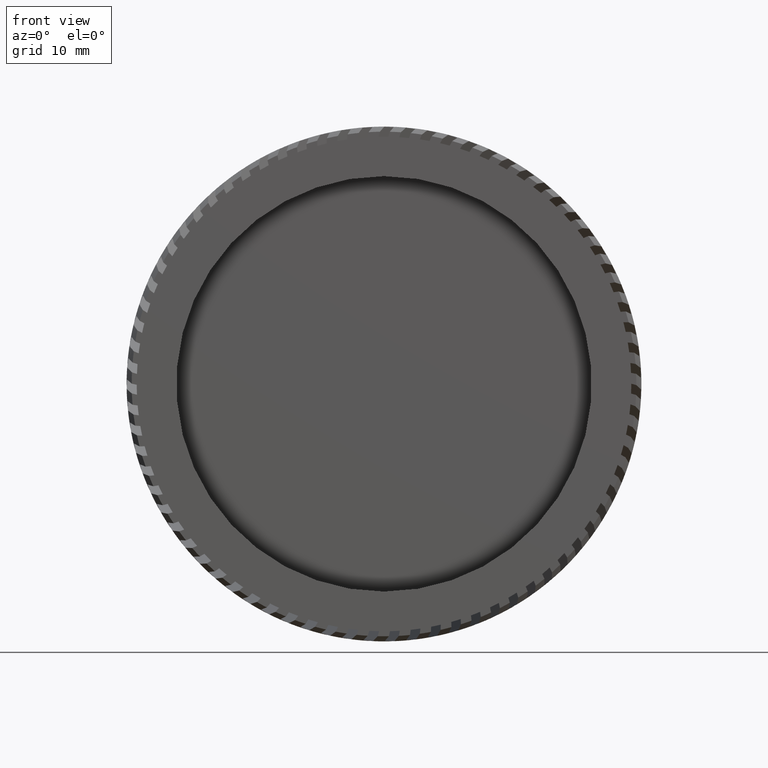
[diagram: clean part render]
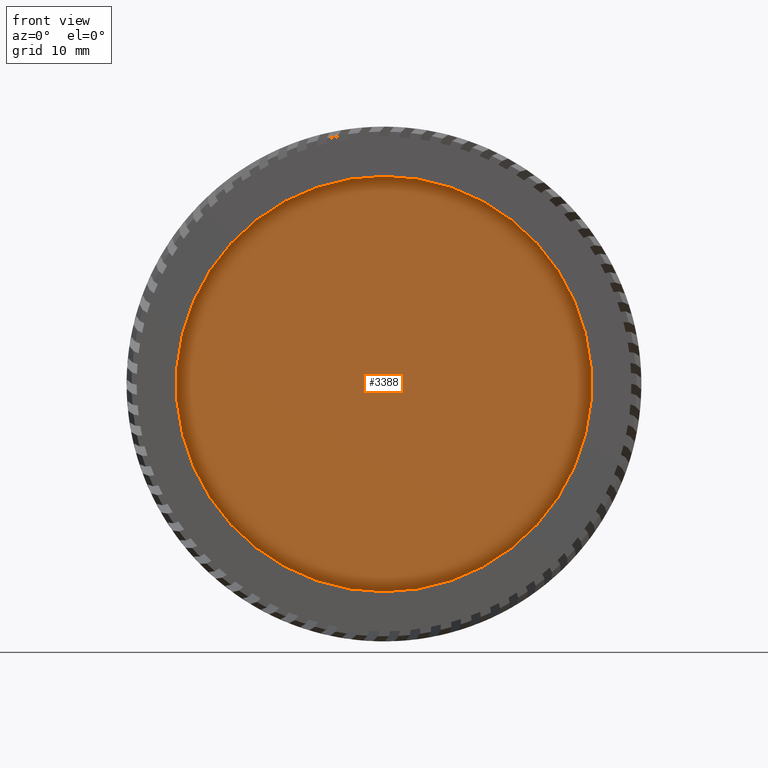
[diagram: same view with one face highlighted and labeled with its STEP entity id]
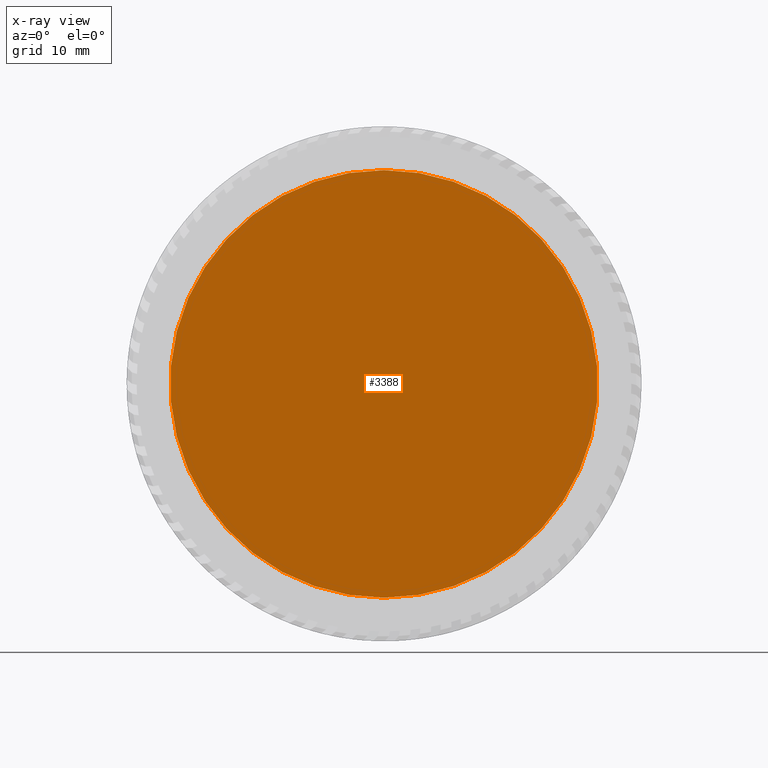
[diagram: x-ray of the same camera — body ghosted, the highlighted face saturated]
A machine part, front view. The second image highlights one B-rep face of the part: STEP entity #3388.
The next image is the same camera in x-ray: the body ghosted, the highlighted face saturated — about 0% of this face is hidden behind the body in this view.
In plain terms, the highlighted planar face has unit normal (-0, 1, 0).
Its self-contained STEP definition (entity closure, byte-faithful):
#1169 = AXIS2_PLACEMENT_3D ( 'NONE', #2012, #15946, #5728 ) ;
#1382 = AXIS2_PLACEMENT_3D ( 'NONE', #12810, #15297, #12974 ) ;
#2012 = CARTESIAN_POINT ( 'NONE',  ( 0.0000000000000000000, -7.830884482231917700, 0.0000000000000000000 ) ) ;
#2251 = PLANE ( 'NONE',  #12538 ) ;
#3388 = ADVANCED_FACE ( 'NONE', ( #7783 ), #2251, .F. ) ;
#3670 = EDGE_CURVE ( 'NONE', #15988, #13260, #13751, .T. ) ;
#4090 = EDGE_CURVE ( 'NONE', #13260, #15988, #5101, .T. ) ;
#4502 = CARTESIAN_POINT ( 'NONE',  ( 0.0000000000000000000, -7.830884482231917700, 21.10000000000000900 ) ) ;
#4738 = DIRECTION ( 'NONE',  ( 0.0000000000000000000, 0.0000000000000000000, 1.000000000000000000 ) ) ;
#5101 = CIRCLE ( 'NONE', #1169, 21.10000000000000900 ) ;
#5728 = DIRECTION ( 'NONE',  ( 0.0000000000000000000, 0.0000000000000000000, 1.000000000000000000 ) ) ;
#6339 = ORIENTED_EDGE ( 'NONE', *, *, #4090, .F. ) ;
#7783 = FACE_OUTER_BOUND ( 'NONE', #10746, .T. ) ;
#9612 = CARTESIAN_POINT ( 'NONE',  ( 21.10000000000000900, -7.830884482231917700, 0.0000000000000000000 ) ) ;
#10746 = EDGE_LOOP ( 'NONE', ( #11710, #6339 ) ) ;
#11340 = CARTESIAN_POINT ( 'NONE',  ( 2.584004746200916200E-015, -7.830884482231917700, -21.10000000000000900 ) ) ;
#11710 = ORIENTED_EDGE ( 'NONE', *, *, #3670, .F. ) ;
#12538 = AXIS2_PLACEMENT_3D ( 'NONE', #9612, #16084, #4738 ) ;
#12810 = CARTESIAN_POINT ( 'NONE',  ( 0.0000000000000000000, -7.830884482231917700, 0.0000000000000000000 ) ) ;
#12974 = DIRECTION ( 'NONE',  ( 0.0000000000000000000, 0.0000000000000000000, 1.000000000000000000 ) ) ;
#13260 = VERTEX_POINT ( 'NONE', #11340 ) ;
#13751 = CIRCLE ( 'NONE', #1382, 21.10000000000000900 ) ;
#15297 = DIRECTION ( 'NONE',  ( -0.0000000000000000000, 1.000000000000000000, -0.0000000000000000000 ) ) ;
#15946 = DIRECTION ( 'NONE',  ( -0.0000000000000000000, 1.000000000000000000, -0.0000000000000000000 ) ) ;
#15988 = VERTEX_POINT ( 'NONE', #4502 ) ;
#16084 = DIRECTION ( 'NONE',  ( -0.0000000000000000000, 1.000000000000000000, 0.0000000000000000000 ) ) ;